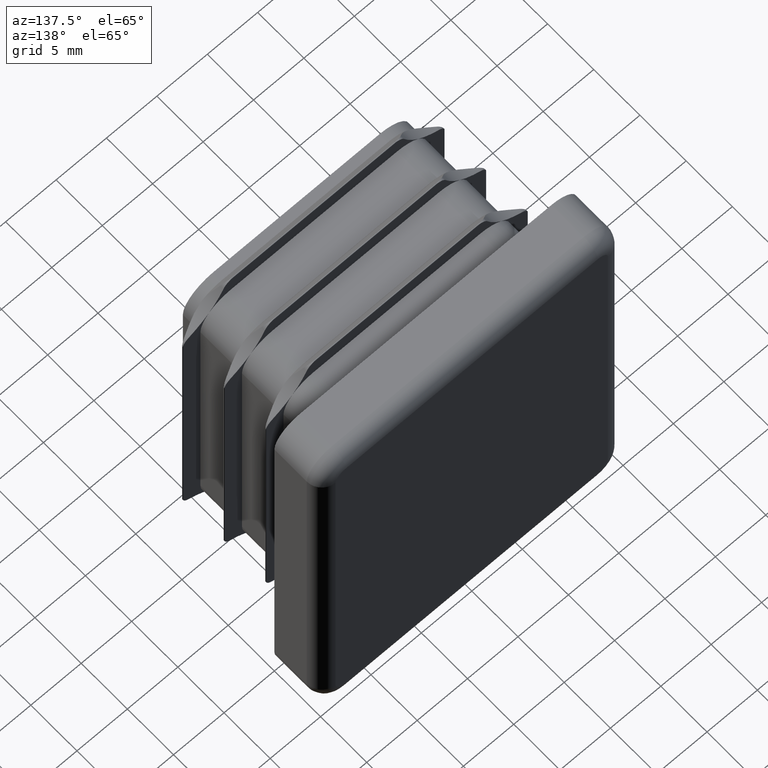
[diagram: clean part render]
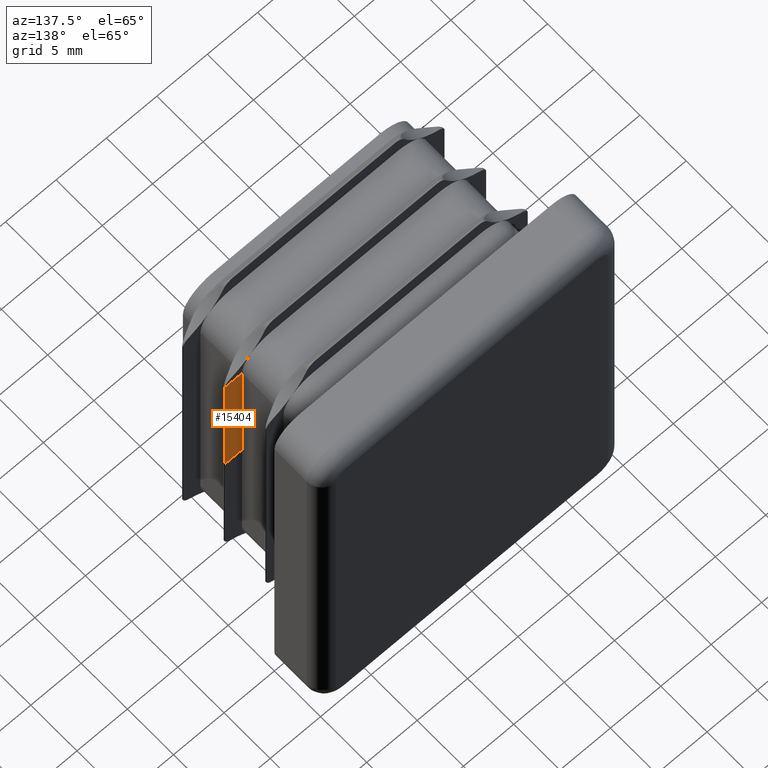
[diagram: same view with one face highlighted and labeled with its STEP entity id]
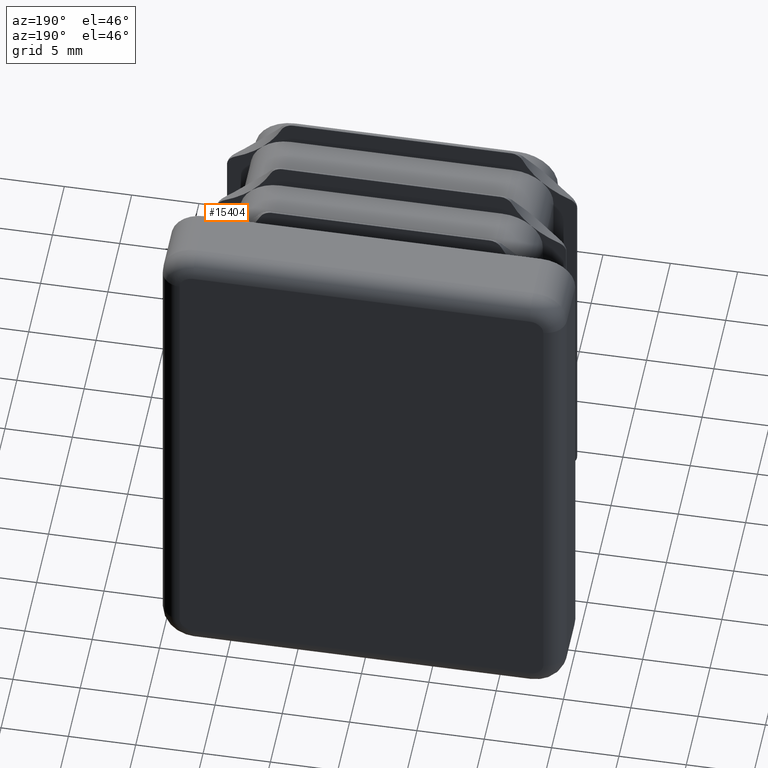
[diagram: same view with one face highlighted and labeled with its STEP entity id]
A machine part, auxiliary view. The second image highlights one B-rep face of the part: STEP entity #15404.
A second angle (auxiliary view) of the same face is appended — the face is thin or edge-on in the first view.
In plain terms, the highlighted planar face has unit normal (0, -1, -0).
Its self-contained STEP definition (entity closure, byte-faithful):
#736 = EDGE_LOOP ( 'NONE', ( #3921, #9119, #11799, #9732 ) ) ;
#1018 = CARTESIAN_POINT ( 'NONE',  ( 11.25000000000000178, -7.600000000000000533, 0.000000000000000000 ) ) ;
#2119 = DIRECTION ( 'NONE',  ( 3.273063162220390819E-16, 0.000000000000000000, -1.000000000000000000 ) ) ;
#2539 = LINE ( 'NONE', #8044, #8545 ) ;
#2555 = DIRECTION ( 'NONE',  ( -1.000000000000000000, 0.000000000000000000, 0.000000000000000000 ) ) ;
#3070 = CARTESIAN_POINT ( 'NONE',  ( 11.24999999999999645, -7.600000000000000533, 13.25000000000000355 ) ) ;
#3844 = AXIS2_PLACEMENT_3D ( 'NONE', #18795, #17127, #6706 ) ;
#3921 = ORIENTED_EDGE ( 'NONE', *, *, #9074, .T. ) ;
#4059 = VECTOR ( 'NONE', #2119, 1000.000000000000000 ) ;
#4489 = LINE ( 'NONE', #18123, #13987 ) ;
#4787 = EDGE_CURVE ( 'NONE', #10920, #10022, #4489, .T. ) ;
#5070 = DIRECTION ( 'NONE',  ( 3.273063162220390819E-16, 0.000000000000000000, -1.000000000000000000 ) ) ;
#5164 = LINE ( 'NONE', #19722, #4059 ) ;
#5358 = EDGE_CURVE ( 'NONE', #12094, #15965, #2539, .T. ) ;
#6478 = PLANE ( 'NONE',  #3844 ) ;
#6635 = CARTESIAN_POINT ( 'NONE',  ( 12.95000000000004547, -7.600000000000000533, 13.25000000000000533 ) ) ;
#6706 = DIRECTION ( 'NONE',  ( 0.000000000000000000, 0.000000000000000000, -1.000000000000000000 ) ) ;
#6731 = FACE_OUTER_BOUND ( 'NONE', #736, .T. ) ;
#7078 = EDGE_CURVE ( 'NONE', #15965, #10022, #9044, .T. ) ;
#8044 = CARTESIAN_POINT ( 'NONE',  ( 11.25000000000003730, -7.600000000000000533, 13.25000000000000533 ) ) ;
#8545 = VECTOR ( 'NONE', #18249, 1000.000000000000000 ) ;
#9044 = LINE ( 'NONE', #20415, #16122 ) ;
#9074 = EDGE_CURVE ( 'NONE', #12094, #10920, #5164, .T. ) ;
#9119 = ORIENTED_EDGE ( 'NONE', *, *, #4787, .T. ) ;
#9732 = ORIENTED_EDGE ( 'NONE', *, *, #5358, .F. ) ;
#10022 = VERTEX_POINT ( 'NONE', #1018 ) ;
#10920 = VERTEX_POINT ( 'NONE', #22352 ) ;
#11799 = ORIENTED_EDGE ( 'NONE', *, *, #7078, .F. ) ;
#12094 = VERTEX_POINT ( 'NONE', #6635 ) ;
#13987 = VECTOR ( 'NONE', #2555, 1000.000000000000000 ) ;
#15404 = ADVANCED_FACE ( 'NONE', ( #6731 ), #6478, .F. ) ;
#15965 = VERTEX_POINT ( 'NONE', #3070 ) ;
#16122 = VECTOR ( 'NONE', #5070, 1000.000000000000000 ) ;
#17127 = DIRECTION ( 'NONE',  ( 0.000000000000000000, -1.000000000000000000, -0.000000000000000000 ) ) ;
#18123 = CARTESIAN_POINT ( 'NONE',  ( 11.25000000000004263, -7.600000000000000533, 0.000000000000000000 ) ) ;
#18249 = DIRECTION ( 'NONE',  ( -1.000000000000000000, 0.000000000000000000, 0.000000000000000000 ) ) ;
#18795 = CARTESIAN_POINT ( 'NONE',  ( 11.25000000000003730, -7.600000000000000533, 13.25000000000000178 ) ) ;
#19722 = CARTESIAN_POINT ( 'NONE',  ( 12.95000000000004547, -7.600000000000000533, 13.25000000000000178 ) ) ;
#20415 = CARTESIAN_POINT ( 'NONE',  ( 11.25000000000003730, -7.600000000000000533, 13.25000000000000178 ) ) ;
#22352 = CARTESIAN_POINT ( 'NONE',  ( 12.95000000000005080, -7.600000000000000533, 0.000000000000000000 ) ) ;